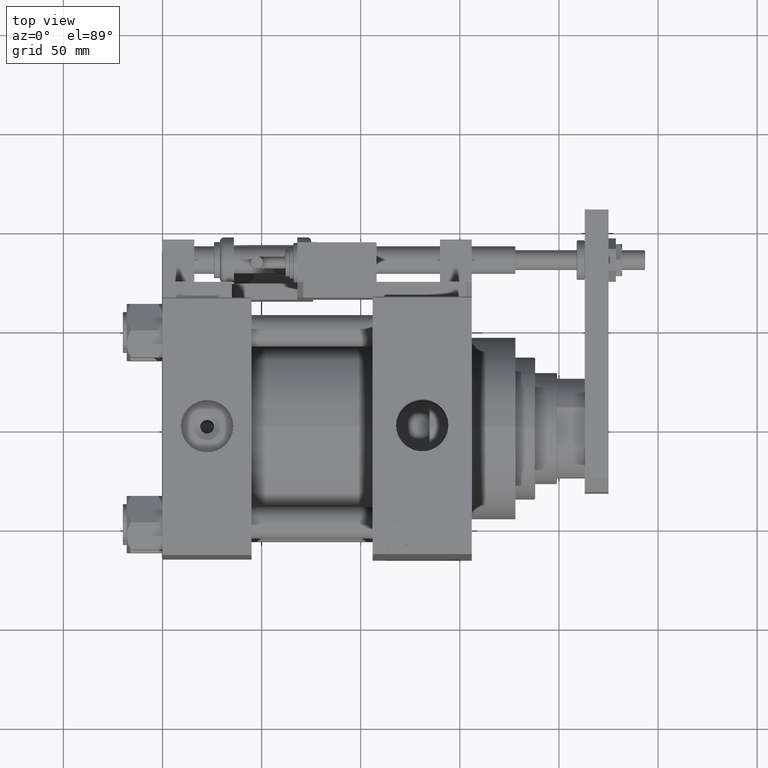
[diagram: clean part render]
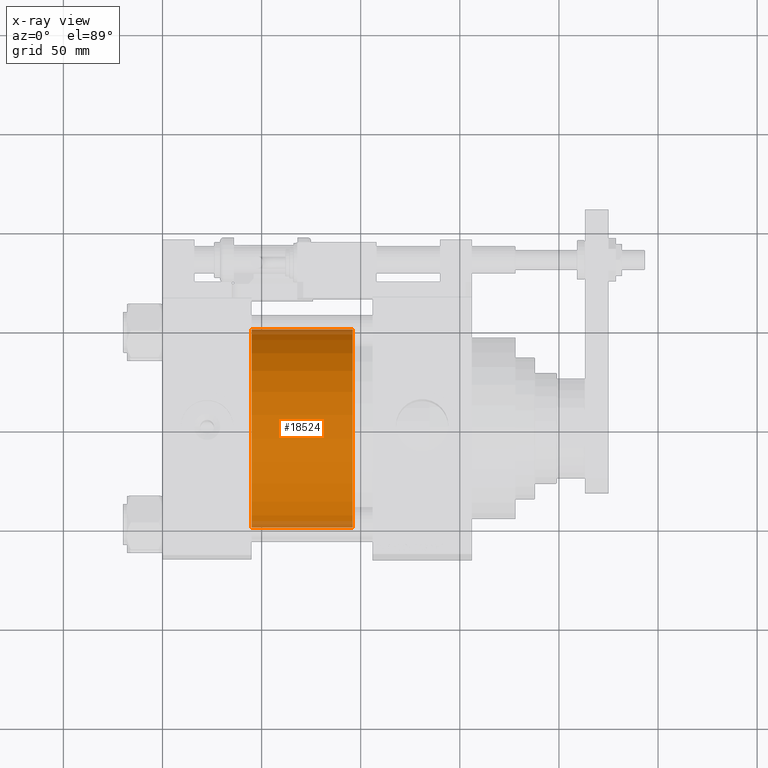
[diagram: x-ray — body ghosted, one internal face saturated and labeled with its STEP entity id]
A machine part, top view, then the same camera in x-ray: the body is ghosted and one INTERNAL B-rep face — a face not visible from any outside direction — is saturated and labeled: STEP entity #18524.
In plain terms, the highlighted cylindrical surface (partial cylindrical patch) has radius 50 mm, axis along (-1, 0, 0).
Its self-contained STEP definition (entity closure, byte-faithful):
#4142 = DIRECTION ( 'NONE',  ( 0.000000000000000000, 0.000000000000000000, 1.000000000000000000 ) ) ;
#4172 = DIRECTION ( 'NONE',  ( -0.000000000000000000, -0.000000000000000000, -1.000000000000000000 ) ) ;
#4689 = DIRECTION ( 'NONE',  ( 1.000000000000000000, 0.000000000000000000, 0.000000000000000000 ) ) ;
#5159 = EDGE_CURVE ( 'NONE', #10260, #47465, #28135, .T. ) ;
#5298 = VECTOR ( 'NONE', #4172, 1000.000000000000000 ) ;
#8001 = EDGE_LOOP ( 'NONE', ( #40297, #8128, #38916, #50718 ) ) ;
#8128 = ORIENTED_EDGE ( 'NONE', *, *, #5159, .F. ) ;
#8733 = DIRECTION ( 'NONE',  ( 0.000000000000000000, 0.000000000000000000, 1.000000000000000000 ) ) ;
#9947 = DIRECTION ( 'NONE',  ( -0.000000000000000000, -0.000000000000000000, -1.000000000000000000 ) ) ;
#10260 = VERTEX_POINT ( 'NONE', #43054 ) ;
#13791 = CIRCLE ( 'NONE', #24143, 50.00000000000000000 ) ;
#14786 = FACE_OUTER_BOUND ( 'NONE', #8001, .T. ) ;
#15478 = VERTEX_POINT ( 'NONE', #48387 ) ;
#17017 = CARTESIAN_POINT ( 'NONE',  ( 0.000000000000000000, 0.000000000000000000, 51.00000000000000000 ) ) ;
#18524 = ADVANCED_FACE ( 'NONE', ( #14786 ), #51576, .T. ) ;
#22693 = EDGE_CURVE ( 'NONE', #10260, #49324, #52846, .T. ) ;
#24143 = AXIS2_PLACEMENT_3D ( 'NONE', #30084, #8733, #4689 ) ;
#24322 = AXIS2_PLACEMENT_3D ( 'NONE', #17017, #9947, #47499 ) ;
#27355 = CARTESIAN_POINT ( 'NONE',  ( 50.00000000000000000, 6.123233995736766085E-15, 51.00000000000000000 ) ) ;
#28135 = CIRCLE ( 'NONE', #35080, 50.00000000000000000 ) ;
#28710 = CARTESIAN_POINT ( 'NONE',  ( 0.000000000000000000, 0.000000000000000000, 51.00000000000000000 ) ) ;
#30084 = CARTESIAN_POINT ( 'NONE',  ( 0.000000000000000000, 0.000000000000000000, 0.000000000000000000 ) ) ;
#33575 = DIRECTION ( 'NONE',  ( 1.000000000000000000, 0.000000000000000000, 0.000000000000000000 ) ) ;
#35080 = AXIS2_PLACEMENT_3D ( 'NONE', #28710, #4142, #33575 ) ;
#35388 = CARTESIAN_POINT ( 'NONE',  ( 50.00000000000000000, 6.123233995736766085E-15, 51.00000000000000000 ) ) ;
#38916 = ORIENTED_EDGE ( 'NONE', *, *, #22693, .T. ) ;
#39438 = LINE ( 'NONE', #35388, #52517 ) ;
#40297 = ORIENTED_EDGE ( 'NONE', *, *, #44516, .F. ) ;
#43054 = CARTESIAN_POINT ( 'NONE',  ( -50.00000000000000000, 0.000000000000000000, 51.00000000000000000 ) ) ;
#44516 = EDGE_CURVE ( 'NONE', #47465, #15478, #39438, .T. ) ;
#47391 = EDGE_CURVE ( 'NONE', #49324, #15478, #13791, .T. ) ;
#47465 = VERTEX_POINT ( 'NONE', #27355 ) ;
#47487 = CARTESIAN_POINT ( 'NONE',  ( -50.00000000000000000, 0.000000000000000000, 0.000000000000000000 ) ) ;
#47499 = DIRECTION ( 'NONE',  ( -1.000000000000000000, 0.000000000000000000, 0.000000000000000000 ) ) ;
#48387 = CARTESIAN_POINT ( 'NONE',  ( 50.00000000000000000, 6.123233995736766085E-15, 0.000000000000000000 ) ) ;
#49324 = VERTEX_POINT ( 'NONE', #47487 ) ;
#49574 = CARTESIAN_POINT ( 'NONE',  ( -50.00000000000000000, 0.000000000000000000, 51.00000000000000000 ) ) ;
#50718 = ORIENTED_EDGE ( 'NONE', *, *, #47391, .T. ) ;
#51576 = CYLINDRICAL_SURFACE ( 'NONE', #24322, 50.00000000000000000 ) ;
#51871 = DIRECTION ( 'NONE',  ( -0.000000000000000000, -0.000000000000000000, -1.000000000000000000 ) ) ;
#52517 = VECTOR ( 'NONE', #51871, 1000.000000000000000 ) ;
#52846 = LINE ( 'NONE', #49574, #5298 ) ;